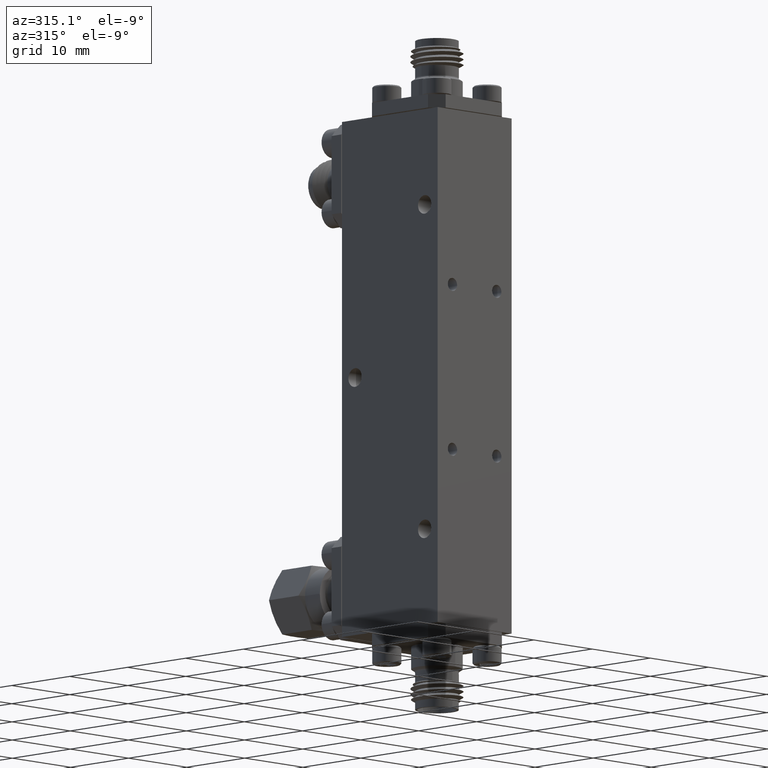
[diagram: clean part render]
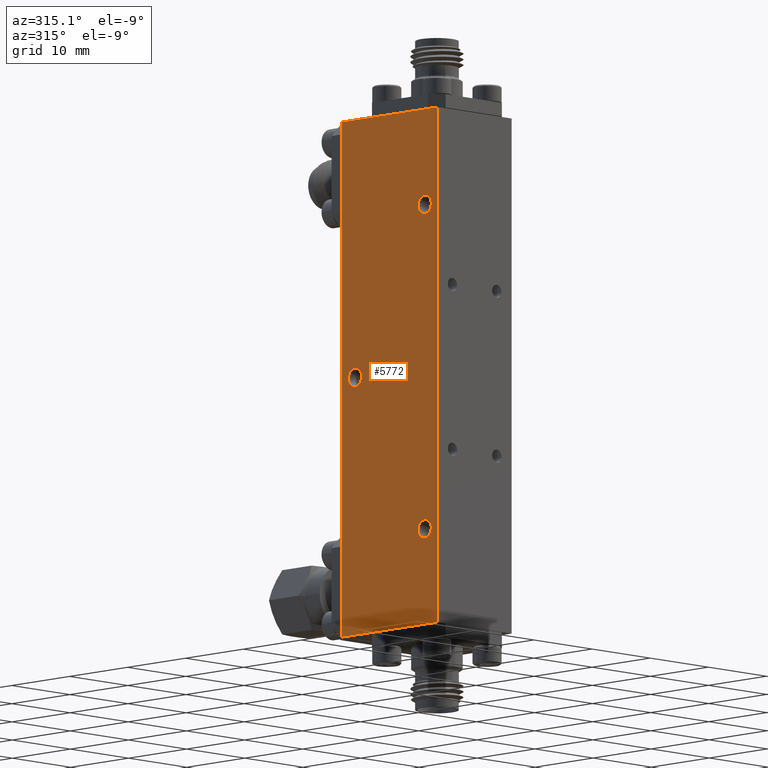
[diagram: same view with one face highlighted and labeled with its STEP entity id]
A machine part, auxiliary view. The second image highlights one B-rep face of the part: STEP entity #5772.
In plain terms, the highlighted planar face has unit normal (-1, 0, 0).
Its self-contained STEP definition (entity closure, byte-faithful):
#570 = EDGE_CURVE ( 'NONE', #15353, #2504, #10137, .T. ) ;
#870 = CARTESIAN_POINT ( 'NONE',  ( -1.585499139784813300, 0.2527924689985547900, -0.9478189816778636000 ) ) ;
#939 = DIRECTION ( 'NONE',  ( 1.000000000000000000, 0.0000000000000000000, 0.0000000000000000000 ) ) ;
#950 = PLANE ( 'NONE',  #19873 ) ;
#1278 = VERTEX_POINT ( 'NONE', #16236 ) ;
#1589 = EDGE_LOOP ( 'NONE', ( #11272, #2228 ) ) ;
#1693 = AXIS2_PLACEMENT_3D ( 'NONE', #12244, #8877, #17726 ) ;
#1823 = ORIENTED_EDGE ( 'NONE', *, *, #18173, .T. ) ;
#1944 = VECTOR ( 'NONE', #19735, 39.37007874015748100 ) ;
#2228 = ORIENTED_EDGE ( 'NONE', *, *, #18985, .T. ) ;
#2504 = VERTEX_POINT ( 'NONE', #9107 ) ;
#2675 = CARTESIAN_POINT ( 'NONE',  ( -1.585499139784813300, 0.3415719965576098900, 1.089582593125286000 ) ) ;
#2767 = DIRECTION ( 'NONE',  ( 0.0000000000000000000, 0.0000000000000000000, 1.000000000000000000 ) ) ;
#2933 = EDGE_LOOP ( 'NONE', ( #21000, #3503 ) ) ;
#2999 = FACE_OUTER_BOUND ( 'NONE', #7636, .T. ) ;
#3064 = DIRECTION ( 'NONE',  ( 1.000000000000000000, 0.0000000000000000000, -0.0000000000000000000 ) ) ;
#3132 = CARTESIAN_POINT ( 'NONE',  ( -1.585499139784813300, 0.3415719965576098900, 1.044582593125286100 ) ) ;
#3503 = ORIENTED_EDGE ( 'NONE', *, *, #13096, .T. ) ;
#4065 = CARTESIAN_POINT ( 'NONE',  ( -1.585499139784813300, 0.3415719965576098900, 1.089582593125286000 ) ) ;
#4259 = DIRECTION ( 'NONE',  ( 1.000000000000000000, 0.0000000000000000000, -0.0000000000000000000 ) ) ;
#4270 = DIRECTION ( 'NONE',  ( 0.0000000000000000000, 0.0000000000000000000, -1.000000000000000000 ) ) ;
#4398 = DIRECTION ( 'NONE',  ( 1.000000000000000000, 0.0000000000000000000, 0.0000000000000000000 ) ) ;
#4826 = DIRECTION ( 'NONE',  ( 0.0000000000000000000, 0.0000000000000000000, -1.000000000000000000 ) ) ;
#5193 = FACE_BOUND ( 'NONE', #2933, .T. ) ;
#5635 = ORIENTED_EDGE ( 'NONE', *, *, #20779, .T. ) ;
#5772 = ADVANCED_FACE ( 'NONE', ( #7601, #5193, #18341, #2999 ), #950, .T. ) ;
#5890 = DIRECTION ( 'NONE',  ( 0.0000000000000000000, 0.0000000000000000000, 1.000000000000000000 ) ) ;
#5968 = CARTESIAN_POINT ( 'NONE',  ( -1.585499139784813300, 0.3415719965576101100, -0.4852205564810133100 ) ) ;
#6556 = DIRECTION ( 'NONE',  ( 0.0000000000000000000, 0.0000000000000000000, 1.000000000000000000 ) ) ;
#7109 = VERTEX_POINT ( 'NONE', #19041 ) ;
#7403 = VECTOR ( 'NONE', #14369, 39.37007874015748100 ) ;
#7601 = FACE_BOUND ( 'NONE', #1589, .T. ) ;
#7636 = EDGE_LOOP ( 'NONE', ( #20648, #22000, #1823, #5635 ) ) ;
#7718 = DIRECTION ( 'NONE',  ( 0.0000000000000000000, 0.0000000000000000000, 1.000000000000000000 ) ) ;
#7770 = CIRCLE ( 'NONE', #9783, 0.04499999999999992900 ) ;
#7773 = CARTESIAN_POINT ( 'NONE',  ( -1.585499139784813300, 0.8140129414394996500, 0.3021810183221364500 ) ) ;
#7809 = CARTESIAN_POINT ( 'NONE',  ( -1.585499139784813300, 0.9027924689985547000, -0.9478189816778636000 ) ) ;
#7916 = CARTESIAN_POINT ( 'NONE',  ( -1.585499139784813300, 0.9027924689985547000, -0.9478189816778636000 ) ) ;
#8410 = LINE ( 'NONE', #11313, #1944 ) ;
#8877 = DIRECTION ( 'NONE',  ( 1.000000000000000000, 0.0000000000000000000, 0.0000000000000000000 ) ) ;
#9107 = CARTESIAN_POINT ( 'NONE',  ( -1.585499139784813300, 0.2527924689985547900, 1.552181018322136500 ) ) ;
#9360 = AXIS2_PLACEMENT_3D ( 'NONE', #13376, #3064, #6556 ) ;
#9451 = VERTEX_POINT ( 'NONE', #3132 ) ;
#9612 = CARTESIAN_POINT ( 'NONE',  ( -1.585499139784813300, 0.2527924689985547900, -0.9478189816778636000 ) ) ;
#9783 = AXIS2_PLACEMENT_3D ( 'NONE', #5968, #4259, #5890 ) ;
#10020 = CARTESIAN_POINT ( 'NONE',  ( -1.585499139784813300, 0.2527924689985547900, 1.552181018322136500 ) ) ;
#10104 = CARTESIAN_POINT ( 'NONE',  ( -1.585499139784813300, 0.3415719965576101100, -0.5302205564810131800 ) ) ;
#10137 = LINE ( 'NONE', #10020, #18748 ) ;
#10913 = LINE ( 'NONE', #7916, #16273 ) ;
#11119 = AXIS2_PLACEMENT_3D ( 'NONE', #4065, #939, #4826 ) ;
#11272 = ORIENTED_EDGE ( 'NONE', *, *, #13752, .T. ) ;
#11313 = CARTESIAN_POINT ( 'NONE',  ( -1.585499139784813300, 0.2527924689985547900, -0.9478189816778636000 ) ) ;
#11779 = VERTEX_POINT ( 'NONE', #17770 ) ;
#12244 = CARTESIAN_POINT ( 'NONE',  ( -1.585499139784813300, 0.8140129414394996500, 0.3021810183221364500 ) ) ;
#12630 = EDGE_CURVE ( 'NONE', #1278, #18388, #22248, .T. ) ;
#12768 = EDGE_CURVE ( 'NONE', #13558, #11779, #7770, .T. ) ;
#12776 = CIRCLE ( 'NONE', #16041, 0.04527559055118096600 ) ;
#13019 = ORIENTED_EDGE ( 'NONE', *, *, #16042, .T. ) ;
#13096 = EDGE_CURVE ( 'NONE', #11779, #13558, #17148, .T. ) ;
#13376 = CARTESIAN_POINT ( 'NONE',  ( -1.585499139784813300, 0.3415719965576101100, -0.4852205564810133100 ) ) ;
#13408 = DIRECTION ( 'NONE',  ( -0.0000000000000000000, -1.000000000000000000, -0.0000000000000000000 ) ) ;
#13473 = VERTEX_POINT ( 'NONE', #7809 ) ;
#13558 = VERTEX_POINT ( 'NONE', #10104 ) ;
#13752 = EDGE_CURVE ( 'NONE', #9451, #7109, #14414, .T. ) ;
#14369 = DIRECTION ( 'NONE',  ( 0.0000000000000000000, 0.0000000000000000000, 1.000000000000000000 ) ) ;
#14399 = EDGE_CURVE ( 'NONE', #13473, #15353, #10913, .T. ) ;
#14414 = CIRCLE ( 'NONE', #11119, 0.04499999999999992900 ) ;
#14892 = LINE ( 'NONE', #17614, #7403 ) ;
#15182 = CARTESIAN_POINT ( 'NONE',  ( -1.585499139784813300, 0.9027924689985547000, 1.552181018322136500 ) ) ;
#15353 = VERTEX_POINT ( 'NONE', #15182 ) ;
#16041 = AXIS2_PLACEMENT_3D ( 'NONE', #7773, #16303, #4270 ) ;
#16042 = EDGE_CURVE ( 'NONE', #18388, #1278, #12776, .T. ) ;
#16236 = CARTESIAN_POINT ( 'NONE',  ( -1.585499139784813300, 0.8140129414394996500, 0.2569054277709554900 ) ) ;
#16273 = VECTOR ( 'NONE', #2767, 39.37007874015748100 ) ;
#16303 = DIRECTION ( 'NONE',  ( 1.000000000000000000, 0.0000000000000000000, 0.0000000000000000000 ) ) ;
#16423 = CIRCLE ( 'NONE', #16514, 0.04499999999999992900 ) ;
#16514 = AXIS2_PLACEMENT_3D ( 'NONE', #2675, #4398, #18095 ) ;
#17148 = CIRCLE ( 'NONE', #9360, 0.04499999999999992900 ) ;
#17614 = CARTESIAN_POINT ( 'NONE',  ( -1.585499139784813300, 0.2527924689985547900, -0.9478189816778636000 ) ) ;
#17726 = DIRECTION ( 'NONE',  ( 0.0000000000000000000, 0.0000000000000000000, -1.000000000000000000 ) ) ;
#17770 = CARTESIAN_POINT ( 'NONE',  ( -1.585499139784813300, 0.3415719965576101100, -0.4402205564810133800 ) ) ;
#18095 = DIRECTION ( 'NONE',  ( 0.0000000000000000000, 0.0000000000000000000, -1.000000000000000000 ) ) ;
#18173 = EDGE_CURVE ( 'NONE', #13473, #20501, #8410, .T. ) ;
#18341 = FACE_BOUND ( 'NONE', #21650, .T. ) ;
#18388 = VERTEX_POINT ( 'NONE', #20594 ) ;
#18748 = VECTOR ( 'NONE', #13408, 39.37007874015748100 ) ;
#18985 = EDGE_CURVE ( 'NONE', #7109, #9451, #16423, .T. ) ;
#19041 = CARTESIAN_POINT ( 'NONE',  ( -1.585499139784813300, 0.3415719965576098900, 1.134582593125286000 ) ) ;
#19373 = ORIENTED_EDGE ( 'NONE', *, *, #12630, .T. ) ;
#19735 = DIRECTION ( 'NONE',  ( -0.0000000000000000000, -1.000000000000000000, -0.0000000000000000000 ) ) ;
#19873 = AXIS2_PLACEMENT_3D ( 'NONE', #870, #21294, #7718 ) ;
#20501 = VERTEX_POINT ( 'NONE', #9612 ) ;
#20594 = CARTESIAN_POINT ( 'NONE',  ( -1.585499139784813300, 0.8140129414394996500, 0.3474566088733174200 ) ) ;
#20648 = ORIENTED_EDGE ( 'NONE', *, *, #570, .F. ) ;
#20779 = EDGE_CURVE ( 'NONE', #20501, #2504, #14892, .T. ) ;
#21000 = ORIENTED_EDGE ( 'NONE', *, *, #12768, .T. ) ;
#21294 = DIRECTION ( 'NONE',  ( -1.000000000000000000, 0.0000000000000000000, 0.0000000000000000000 ) ) ;
#21650 = EDGE_LOOP ( 'NONE', ( #19373, #13019 ) ) ;
#22000 = ORIENTED_EDGE ( 'NONE', *, *, #14399, .F. ) ;
#22248 = CIRCLE ( 'NONE', #1693, 0.04527559055118096600 ) ;